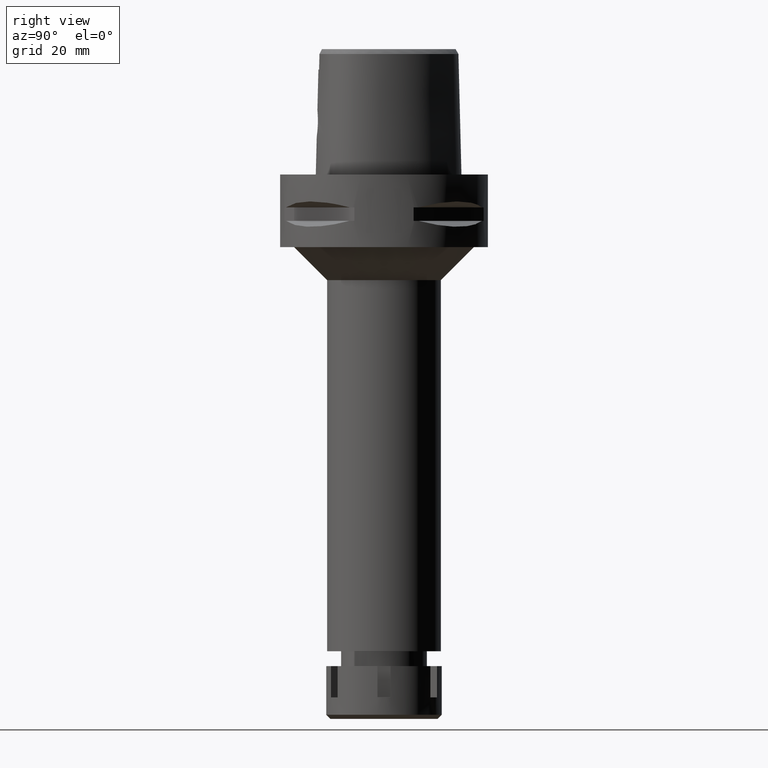
[diagram: clean part render]
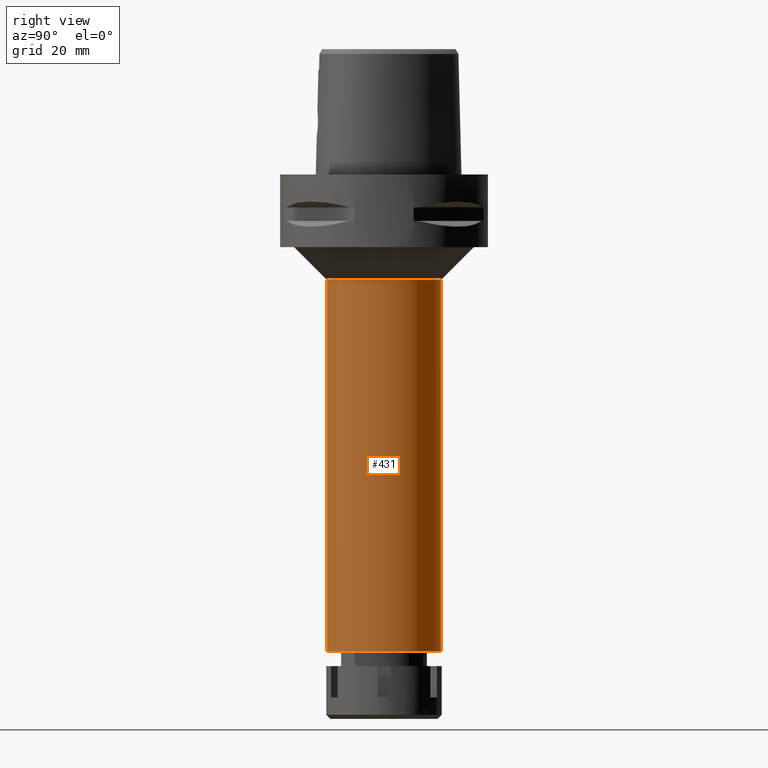
[diagram: same view with one face highlighted and labeled with its STEP entity id]
A machine part, right view. The second image highlights one B-rep face of the part: STEP entity #431.
In plain terms, the highlighted cylindrical surface (partial cylindrical patch) has radius 17.25 mm, axis along (0, 0, -1).
Its self-contained STEP definition (entity closure, byte-faithful):
#166 = VERTEX_POINT ( 'NONE', #2971 ) ;
#238 = DIRECTION ( 'NONE',  ( 0.0000000000000000000, 0.0000000000000000000, -1.000000000000000000 ) ) ;
#431 = ADVANCED_FACE ( 'NONE', ( #832 ), #2053, .T. ) ;
#657 = DIRECTION ( 'NONE',  ( 0.0000000000000000000, 1.000000000000000000, 0.0000000000000000000 ) ) ;
#832 = FACE_OUTER_BOUND ( 'NONE', #3487, .T. ) ;
#1035 = CARTESIAN_POINT ( 'NONE',  ( 0.0000000000000000000, 17.25000000000000000, -32.00000000000000000 ) ) ;
#1509 = ORIENTED_EDGE ( 'NONE', *, *, #2917, .F. ) ;
#1511 = VECTOR ( 'NONE', #5038, 1000.000000000000000 ) ;
#1645 = DIRECTION ( 'NONE',  ( 0.0000000000000000000, 0.0000000000000000000, -1.000000000000000000 ) ) ;
#2053 = CYLINDRICAL_SURFACE ( 'NONE', #2578, 17.25000000000000000 ) ;
#2066 = CARTESIAN_POINT ( 'NONE',  ( 0.0000000000000000000, -17.25000000000000000, -32.00000000000000000 ) ) ;
#2074 = EDGE_CURVE ( 'NONE', #5561, #4852, #2412, .T. ) ;
#2079 = EDGE_CURVE ( 'NONE', #4852, #166, #5465, .T. ) ;
#2412 = CIRCLE ( 'NONE', #3941, 17.25000000000000000 ) ;
#2422 = ORIENTED_EDGE ( 'NONE', *, *, #4882, .T. ) ;
#2578 = AXIS2_PLACEMENT_3D ( 'NONE', #5108, #5474, #2960 ) ;
#2896 = VERTEX_POINT ( 'NONE', #4494 ) ;
#2917 = EDGE_CURVE ( 'NONE', #5561, #2896, #4115, .T. ) ;
#2960 = DIRECTION ( 'NONE',  ( 0.0000000000000000000, -1.000000000000000000, 0.0000000000000000000 ) ) ;
#2971 = CARTESIAN_POINT ( 'NONE',  ( 0.0000000000000000000, -17.25000000000000000, -144.5000000000000000 ) ) ;
#3190 = AXIS2_PLACEMENT_3D ( 'NONE', #4206, #3253, #4977 ) ;
#3253 = DIRECTION ( 'NONE',  ( 0.0000000000000000000, 0.0000000000000000000, 1.000000000000000000 ) ) ;
#3408 = VECTOR ( 'NONE', #238, 1000.000000000000000 ) ;
#3487 = EDGE_LOOP ( 'NONE', ( #4802, #3803, #2422, #1509 ) ) ;
#3770 = CARTESIAN_POINT ( 'NONE',  ( 0.0000000000000000000, 0.0000000000000000000, -32.00000000000000000 ) ) ;
#3803 = ORIENTED_EDGE ( 'NONE', *, *, #2079, .T. ) ;
#3941 = AXIS2_PLACEMENT_3D ( 'NONE', #3770, #1645, #657 ) ;
#4115 = LINE ( 'NONE', #5419, #3408 ) ;
#4206 = CARTESIAN_POINT ( 'NONE',  ( 0.0000000000000000000, 1.320781572880000066E-14, -144.5000000000000000 ) ) ;
#4494 = CARTESIAN_POINT ( 'NONE',  ( 0.0000000000000000000, 17.25000000000000000, -144.5000000000000000 ) ) ;
#4505 = CARTESIAN_POINT ( 'NONE',  ( 0.0000000000000000000, -17.25000000000000000, -32.00000000000000000 ) ) ;
#4802 = ORIENTED_EDGE ( 'NONE', *, *, #2074, .T. ) ;
#4852 = VERTEX_POINT ( 'NONE', #2066 ) ;
#4877 = CIRCLE ( 'NONE', #3190, 17.25000000000000000 ) ;
#4882 = EDGE_CURVE ( 'NONE', #166, #2896, #4877, .T. ) ;
#4977 = DIRECTION ( 'NONE',  ( 0.0000000000000000000, -1.000000000000000000, 0.0000000000000000000 ) ) ;
#5038 = DIRECTION ( 'NONE',  ( 0.0000000000000000000, 0.0000000000000000000, -1.000000000000000000 ) ) ;
#5108 = CARTESIAN_POINT ( 'NONE',  ( 0.0000000000000000000, 1.320781572880000066E-14, 7.849999999999999645 ) ) ;
#5419 = CARTESIAN_POINT ( 'NONE',  ( 0.0000000000000000000, 17.25000000000000000, -32.00000000000000000 ) ) ;
#5465 = LINE ( 'NONE', #4505, #1511 ) ;
#5474 = DIRECTION ( 'NONE',  ( 0.0000000000000000000, 0.0000000000000000000, -1.000000000000000000 ) ) ;
#5561 = VERTEX_POINT ( 'NONE', #1035 ) ;